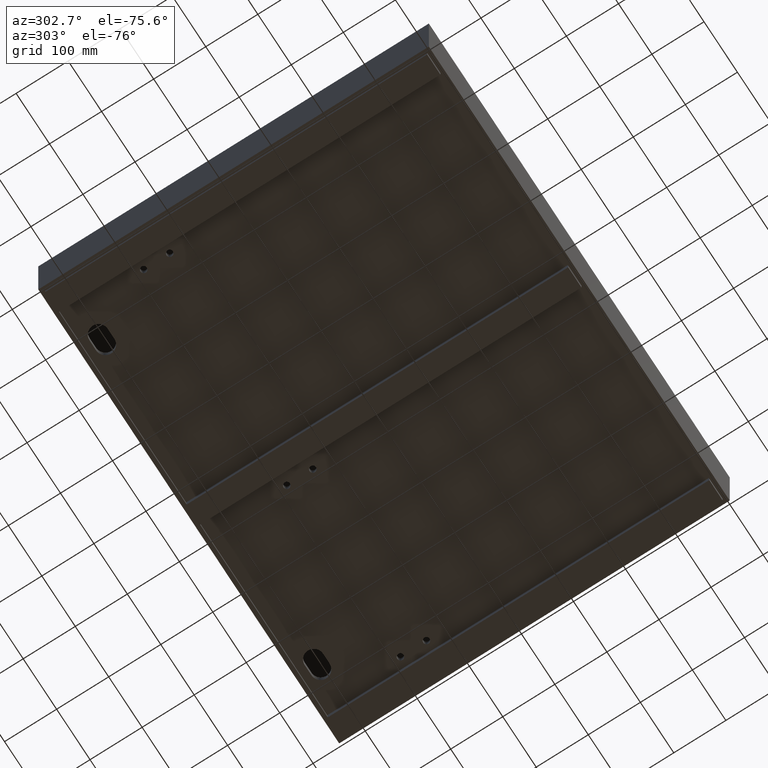
[diagram: clean part render]
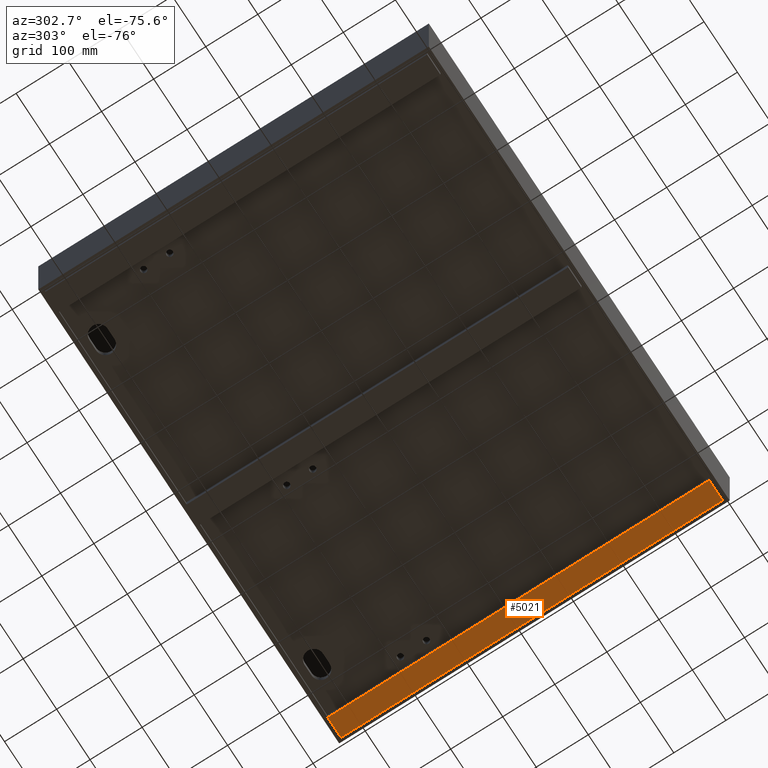
[diagram: same view with one face highlighted and labeled with its STEP entity id]
A machine part, auxiliary view. The second image highlights one B-rep face of the part: STEP entity #5021.
In plain terms, the highlighted planar face has unit normal (-0, 0, -1).
Its self-contained STEP definition (entity closure, byte-faithful):
#97 = PLANE ( 'NONE',  #5313 ) ;
#146 = CARTESIAN_POINT ( 'NONE',  ( 852.0000000000000000, 741.4999000000001388, -157.0000000000003695 ) ) ;
#1740 = CARTESIAN_POINT ( 'NONE',  ( 852.0000000000000000, 741.4999000000001388, -157.0000000000003695 ) ) ;
#2098 = DIRECTION ( 'NONE',  ( 1.000000000000000000, 4.220582097920320918E-34, -6.938893903907220489E-16 ) ) ;
#2408 = DIRECTION ( 'NONE',  ( -1.000000000000000000, -4.336808689942012806E-17, 6.938893903907220489E-16 ) ) ;
#2523 = VERTEX_POINT ( 'NONE', #7641 ) ;
#2850 = EDGE_LOOP ( 'NONE', ( #5422, #7416, #11006, #5785 ) ) ;
#3271 = CARTESIAN_POINT ( 'NONE',  ( 892.0000000000000000, 741.4999000000001388, -157.0000000000003695 ) ) ;
#3498 = CARTESIAN_POINT ( 'NONE',  ( -1.110223024625156540E-13, 0.0000000000000000000, -156.9999999999997442 ) ) ;
#5021 = ADVANCED_FACE ( 'NONE', ( #7761 ), #97, .T. ) ;
#5046 = VERTEX_POINT ( 'NONE', #146 ) ;
#5137 = DIRECTION ( 'NONE',  ( 1.514629162466674743E-16, 1.000000000000000000, -7.703719777548943412E-34 ) ) ;
#5313 = AXIS2_PLACEMENT_3D ( 'NONE', #3498, #6913, #10323 ) ;
#5339 = VECTOR ( 'NONE', #2408, 1000.000000000000000 ) ;
#5359 = EDGE_CURVE ( 'NONE', #9264, #6214, #10927, .T. ) ;
#5422 = ORIENTED_EDGE ( 'NONE', *, *, #5359, .T. ) ;
#5785 = ORIENTED_EDGE ( 'NONE', *, *, #8526, .T. ) ;
#5875 = VECTOR ( 'NONE', #2098, 1000.000000000000000 ) ;
#6214 = VERTEX_POINT ( 'NONE', #7068 ) ;
#6346 = LINE ( 'NONE', #9756, #5875 ) ;
#6652 = LINE ( 'NONE', #10069, #5339 ) ;
#6683 = DIRECTION ( 'NONE',  ( -1.514629162466674743E-16, -1.000000000000000000, 7.703719777548943412E-34 ) ) ;
#6881 = EDGE_CURVE ( 'NONE', #6214, #2523, #6652, .T. ) ;
#6913 = DIRECTION ( 'NONE',  ( -6.938893903907220489E-16, 1.051557749635430776E-31, -1.000000000000000000 ) ) ;
#7068 = CARTESIAN_POINT ( 'NONE',  ( 892.0000000000000000, 8.500000000000007105, -157.0000000000003695 ) ) ;
#7416 = ORIENTED_EDGE ( 'NONE', *, *, #6881, .T. ) ;
#7641 = CARTESIAN_POINT ( 'NONE',  ( 852.0000000000000000, 8.500000000000007105, -157.0000000000003695 ) ) ;
#7761 = FACE_OUTER_BOUND ( 'NONE', #2850, .T. ) ;
#7888 = VECTOR ( 'NONE', #5137, 1000.000000000000000 ) ;
#8526 = EDGE_CURVE ( 'NONE', #5046, #9264, #6346, .T. ) ;
#9264 = VERTEX_POINT ( 'NONE', #9740 ) ;
#9398 = LINE ( 'NONE', #1740, #7888 ) ;
#9533 = EDGE_CURVE ( 'NONE', #2523, #5046, #9398, .T. ) ;
#9740 = CARTESIAN_POINT ( 'NONE',  ( 892.0000000000000000, 741.4999000000001388, -157.0000000000003695 ) ) ;
#9756 = CARTESIAN_POINT ( 'NONE',  ( 892.0000000000000000, 741.4999000000001388, -157.0000000000003695 ) ) ;
#9785 = VECTOR ( 'NONE', #6683, 1000.000000000000000 ) ;
#10069 = CARTESIAN_POINT ( 'NONE',  ( 892.0000000000000000, 8.500000000000007105, -157.0000000000003695 ) ) ;
#10323 = DIRECTION ( 'NONE',  ( -1.000000000000000000, -4.220582097920320918E-34, 6.938893903907220489E-16 ) ) ;
#10927 = LINE ( 'NONE', #3271, #9785 ) ;
#11006 = ORIENTED_EDGE ( 'NONE', *, *, #9533, .T. ) ;